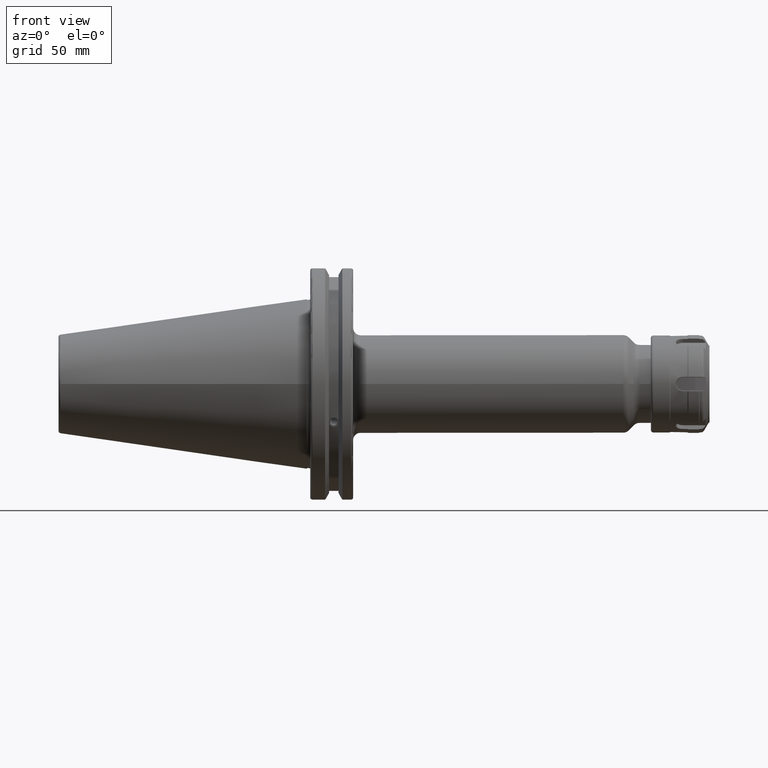
[diagram: clean part render]
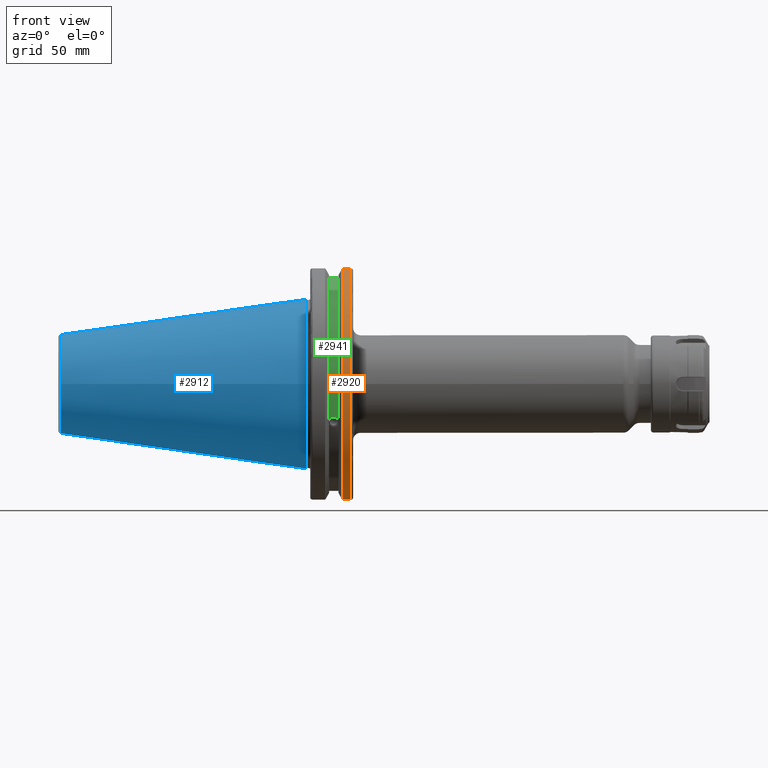
[diagram: same view with three faces highlighted in distinct colors, each labeled with its STEP entity id]
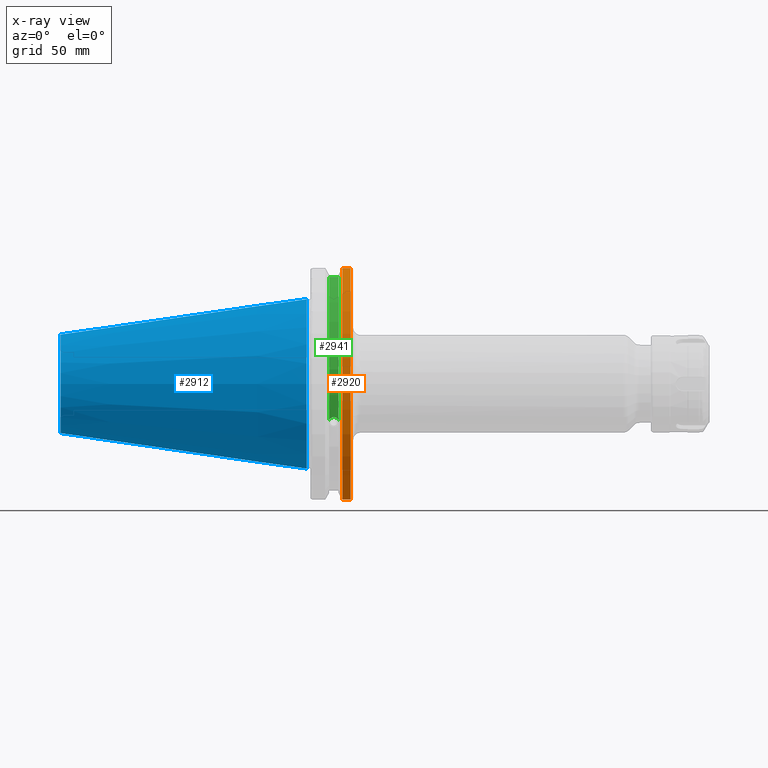
[diagram: x-ray of the same camera — body ghosted, the three highlighted faces saturated]
A machine part, front view with three faces highlighted in distinct colors.
The next image is the same camera in x-ray (body ghosted, the three faces saturated) — at least one of them is partly hidden behind the body in this view.
Their STEP definitions:

[orange] entity #2920 — the highlighted cylindrical surface (partial cylindrical patch) has radius 49.2125 mm, axis along (1, 0, 0).
#146=CYLINDRICAL_SURFACE('',#3230,49.2125);
#263=LINE('',#5225,#459);
#264=LINE('',#5227,#460);
#459=VECTOR('',#3809,10.);
#460=VECTOR('',#3812,10.);
#756=FACE_OUTER_BOUND('',#936,.T.);
#936=EDGE_LOOP('',(#2334,#2335,#2336,#2337));
#1082=CIRCLE('',#3156,49.2125);
#1102=CIRCLE('',#3198,49.2125);
#1261=VERTEX_POINT('',#4695);
#1262=VERTEX_POINT('',#4699);
#1311=VERTEX_POINT('',#5033);
#1312=VERTEX_POINT('',#5042);
#1581=EDGE_CURVE('',#1262,#1261,#1082,.T.);
#1651=EDGE_CURVE('',#1311,#1312,#1102,.T.);
#1713=EDGE_CURVE('',#1312,#1261,#263,.T.);
#1714=EDGE_CURVE('',#1262,#1311,#264,.T.);
#2334=ORIENTED_EDGE('',*,*,#1651,.F.);
#2335=ORIENTED_EDGE('',*,*,#1714,.F.);
#2336=ORIENTED_EDGE('',*,*,#1581,.T.);
#2337=ORIENTED_EDGE('',*,*,#1713,.F.);
#2920=ADVANCED_FACE('',(#756),#146,.T.);
#3156=AXIS2_PLACEMENT_3D('',#4700,#3604,#3605);
#3198=AXIS2_PLACEMENT_3D('',#5043,#3711,#3712);
#3230=AXIS2_PLACEMENT_3D('',#5226,#3810,#3811);
#3604=DIRECTION('center_axis',(1.,0.,0.));
#3605=DIRECTION('ref_axis',(0.,0.,-1.));
#3711=DIRECTION('center_axis',(1.,0.,0.));
#3712=DIRECTION('ref_axis',(0.,-1.,1.60812264967664E-16));
#3809=DIRECTION('',(-1.,0.,0.));
#3810=DIRECTION('center_axis',(1.,0.,0.));
#3811=DIRECTION('ref_axis',(0.,-1.,1.22464679914735E-16));
#3812=DIRECTION('',(1.,0.,0.));
#4695=CARTESIAN_POINT('',(14.6602090340487,-13.4317035994433,-47.3440544806494));
#4699=CARTESIAN_POINT('',(14.6602090340487,-13.4317035994433,47.3440544806494));
#4700=CARTESIAN_POINT('Origin',(14.6602090340487,0.,0.));
#5033=CARTESIAN_POINT('',(18.05,-13.4317035994433,47.3440544806494));
#5042=CARTESIAN_POINT('',(18.05,-13.4317035994433,-47.3440544806494));
#5043=CARTESIAN_POINT('Origin',(18.05,0.,0.));
#5225=CARTESIAN_POINT('',(16.8551045170244,-13.4317035994433,-47.3440544806494));
#5226=CARTESIAN_POINT('Origin',(16.8551045170244,0.,0.));
#5227=CARTESIAN_POINT('',(16.8551045170244,-13.4317035994433,47.3440544806494));

[blue] entity #2912 — the highlighted conical surface has half-angle 8.297 deg.
#251=LINE('',#5191,#447);
#447=VECTOR('',#3783,27.5166666666666);
#576=CONICAL_SURFACE('',#3221,27.5166666666666,0.14481249823894);
#748=FACE_OUTER_BOUND('',#928,.T.);
#928=EDGE_LOOP('',(#2289,#2290,#2291,#2292,#2293));
#1109=CIRCLE('',#3215,20.233121911427);
#1110=CIRCLE('',#3216,20.233121911427);
#1114=CIRCLE('',#3222,34.925);
#1339=VERTEX_POINT('',#5178);
#1340=VERTEX_POINT('',#5179);
#1343=VERTEX_POINT('',#5189);
#1692=EDGE_CURVE('',#1339,#1340,#1109,.T.);
#1693=EDGE_CURVE('',#1340,#1339,#1110,.T.);
#1697=EDGE_CURVE('',#1343,#1343,#1114,.T.);
#1698=EDGE_CURVE('',#1343,#1340,#251,.T.);
#2289=ORIENTED_EDGE('',*,*,#1697,.F.);
#2290=ORIENTED_EDGE('',*,*,#1698,.T.);
#2291=ORIENTED_EDGE('',*,*,#1692,.F.);
#2292=ORIENTED_EDGE('',*,*,#1693,.F.);
#2293=ORIENTED_EDGE('',*,*,#1698,.F.);
#2912=ADVANCED_FACE('',(#748),#576,.T.);
#3215=AXIS2_PLACEMENT_3D('',#5180,#3767,#3768);
#3216=AXIS2_PLACEMENT_3D('',#5181,#3769,#3770);
#3221=AXIS2_PLACEMENT_3D('',#5188,#3779,#3780);
#3222=AXIS2_PLACEMENT_3D('',#5190,#3781,#3782);
#3767=DIRECTION('center_axis',(-1.,0.,0.));
#3768=DIRECTION('ref_axis',(0.,-1.,3.06161699786838E-17));
#3769=DIRECTION('center_axis',(-1.,0.,0.));
#3770=DIRECTION('ref_axis',(0.,-1.,3.06161699786838E-17));
#3779=DIRECTION('center_axis',(1.,0.,0.));
#3780=DIRECTION('ref_axis',(0.,1.,0.));
#3781=DIRECTION('center_axis',(1.,0.,0.));
#3782=DIRECTION('ref_axis',(0.,0.,-1.));
#3783=DIRECTION('',(-0.989532981063281,0.144306893071729,1.76724974695192E-17));
#5178=CARTESIAN_POINT('',(-100.744306893072,-2.47784279855872E-15,20.233121911427));
#5179=CARTESIAN_POINT('',(-100.744306893072,-20.233121911427,-2.47784279855872E-15));
#5180=CARTESIAN_POINT('Origin',(-100.744306893072,0.,-3.09730349819841E-15));
#5181=CARTESIAN_POINT('Origin',(-100.744306893072,0.,-3.09730349819841E-15));
#5188=CARTESIAN_POINT('Origin',(-50.8,0.,0.));
#5189=CARTESIAN_POINT('',(-8.88178419700125E-15,-34.925,-4.27707894602213E-15));
#5190=CARTESIAN_POINT('Origin',(0.,0.,0.));
#5191=CARTESIAN_POINT('',(-50.8,-27.5166666666666,-3.3698197756538E-15));

[green] entity #2941 — the highlighted cylindrical surface (partial cylindrical patch) has radius 45.6435 mm, axis along (1, 0, 0).
#76=B_SPLINE_CURVE_WITH_KNOTS('',3,(#4611,#4612,#4613,#4614,#4615,#4616,
#4617,#4618,#4619,#4620,#4621,#4622,#4623,#4624),.UNSPECIFIED.,.F.,.F.,
(4,2,2,2,2,2,4),(0.40154831257669,0.474697095495631,0.553813286063443,0.632929476631254,
0.712045667199066,0.791161857766877,0.864310640685818),.UNSPECIFIED.);
#152=CYLINDRICAL_SURFACE('',#3266,45.6435);
#233=LINE('',#5073,#429);
#429=VECTOR('',#3719,10.);
#777=FACE_OUTER_BOUND('',#959,.T.);
#959=EDGE_LOOP('',(#2428,#2429,#2430,#2431));
#1129=CIRCLE('',#3265,45.6435);
#1130=CIRCLE('',#3267,45.6435);
#1247=VERTEX_POINT('',#4608);
#1248=VERTEX_POINT('',#4610);
#1318=VERTEX_POINT('',#5070);
#1319=VERTEX_POINT('',#5072);
#1563=EDGE_CURVE('',#1248,#1247,#76,.T.);
#1659=EDGE_CURVE('',#1319,#1318,#233,.T.);
#1737=EDGE_CURVE('',#1318,#1248,#1129,.T.);
#1738=EDGE_CURVE('',#1319,#1247,#1130,.T.);
#2428=ORIENTED_EDGE('',*,*,#1563,.T.);
#2429=ORIENTED_EDGE('',*,*,#1738,.F.);
#2430=ORIENTED_EDGE('',*,*,#1659,.T.);
#2431=ORIENTED_EDGE('',*,*,#1737,.T.);
#2941=ADVANCED_FACE('',(#777),#152,.T.);
#3265=AXIS2_PLACEMENT_3D('',#5281,#3888,#3889);
#3266=AXIS2_PLACEMENT_3D('',#5282,#3890,#3891);
#3267=AXIS2_PLACEMENT_3D('',#5283,#3892,#3893);
#3719=DIRECTION('',(-1.,0.,0.));
#3888=DIRECTION('center_axis',(1.,0.,0.));
#3889=DIRECTION('ref_axis',(0.,0.,-1.));
#3890=DIRECTION('center_axis',(1.,0.,0.));
#3891=DIRECTION('ref_axis',(0.,-0.888619069115281,0.458645996390125));
#3892=DIRECTION('center_axis',(1.,0.,0.));
#3893=DIRECTION('ref_axis',(0.,0.,-1.));
#4608=CARTESIAN_POINT('',(13.0491,-43.1779814500336,-14.7983448449669));
#4610=CARTESIAN_POINT('',(9.2191,-43.1779814500336,-14.7983448449669));
#4611=CARTESIAN_POINT('Ctrl Pts',(9.2191,-43.1779814500335,-14.7983448449669));
#4612=CARTESIAN_POINT('Ctrl Pts',(9.32532177598176,-43.2545173750974,-14.5750315766731));
#4613=CARTESIAN_POINT('Ctrl Pts',(9.47680807557666,-43.3223492818373,-14.3712521044637));
#4614=CARTESIAN_POINT('Ctrl Pts',(9.83560503400179,-43.4340904392251,-14.0300988117073));
#4615=CARTESIAN_POINT('Ctrl Pts',(10.0717203280543,-43.4832903960863,-13.8760243976176));
#4616=CARTESIAN_POINT('Ctrl Pts',(10.5891059167872,-43.54802519266,-13.6715068146718));
#4617=CARTESIAN_POINT('Ctrl Pts',(10.870379364774,-43.5636826100883,-13.6211104428929));
#4618=CARTESIAN_POINT('Ctrl Pts',(11.397820635226,-43.5636826100883,-13.6211104428929));
#4619=CARTESIAN_POINT('Ctrl Pts',(11.6790940832128,-43.54802519266,-13.6715068146718));
#4620=CARTESIAN_POINT('Ctrl Pts',(12.1964796719457,-43.4832903960863,-13.8760243976176));
#4621=CARTESIAN_POINT('Ctrl Pts',(12.4325949659982,-43.4340904392251,-14.0300988117073));
#4622=CARTESIAN_POINT('Ctrl Pts',(12.7913919244233,-43.3223492818373,-14.3712521044637));
#4623=CARTESIAN_POINT('Ctrl Pts',(12.9428782240182,-43.2545173750974,-14.5750315766731));
#4624=CARTESIAN_POINT('Ctrl Pts',(13.0491,-43.1779814500335,-14.7983448449669));
#5070=CARTESIAN_POINT('',(9.2191,-12.95,43.7678716897452));
#5072=CARTESIAN_POINT('',(13.0491,-12.95,43.7678716897452));
#5073=CARTESIAN_POINT('',(11.1341,-12.95,43.7678716897452));
#5281=CARTESIAN_POINT('Origin',(9.2191,0.,0.));
#5282=CARTESIAN_POINT('Origin',(11.1341,0.,0.));
#5283=CARTESIAN_POINT('Origin',(13.0491,0.,0.));